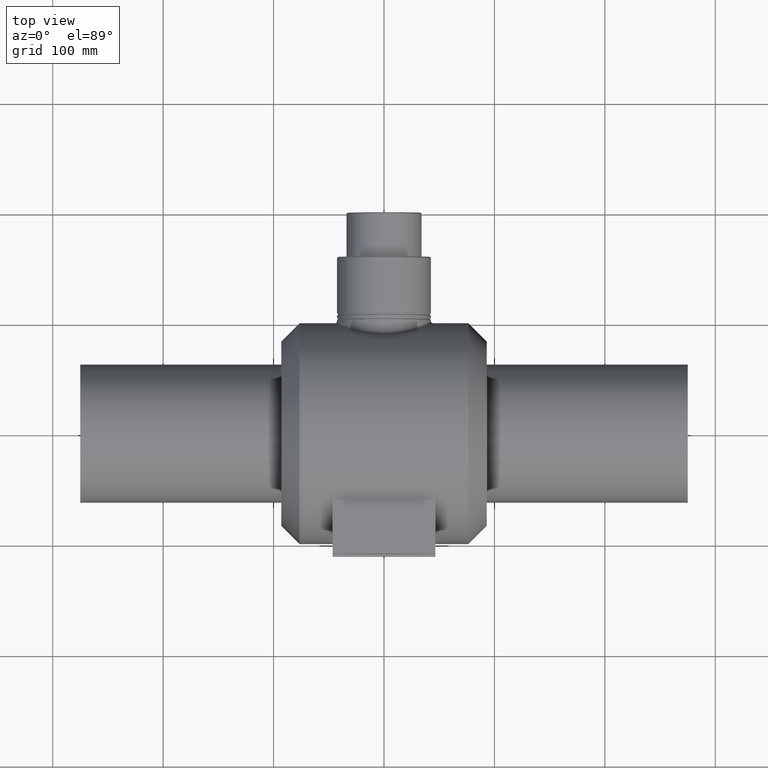
[diagram: clean part render]
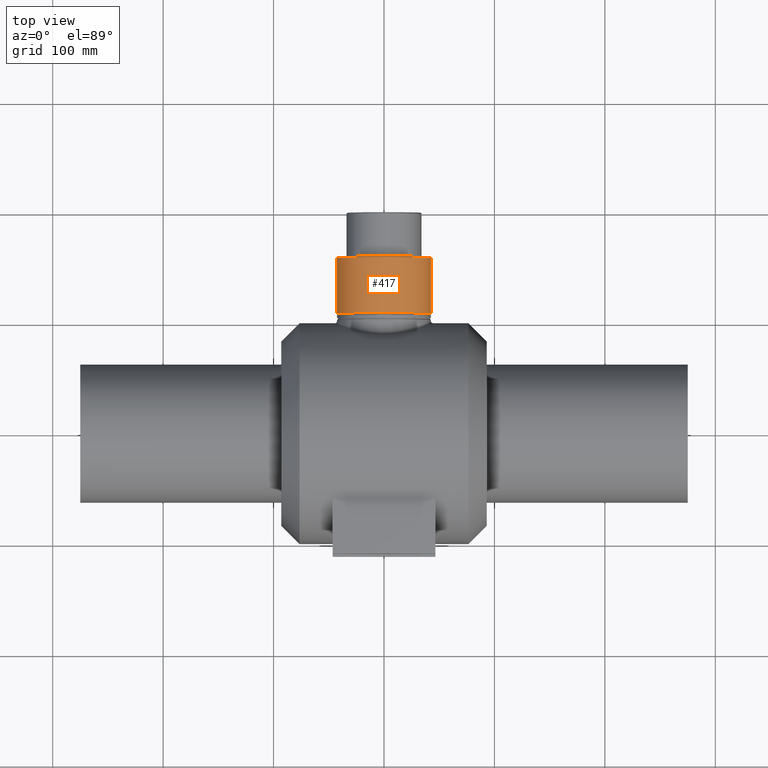
[diagram: same view with one face highlighted and labeled with its STEP entity id]
A machine part, top view. The second image highlights one B-rep face of the part: STEP entity #417.
In plain terms, the highlighted cylindrical surface (bore or boss wall) has radius 42.5 mm, axis along (0, 1, 0).
Its self-contained STEP definition (entity closure, byte-faithful):
#84=FACE_BOUND('',#155,.T.);
#105=CYLINDRICAL_SURFACE('',#461,42.5);
#116=FACE_OUTER_BOUND('',#154,.T.);
#154=EDGE_LOOP('',(#335));
#155=EDGE_LOOP('',(#336));
#211=CIRCLE('',#459,42.5);
#213=CIRCLE('',#462,42.5);
#242=VERTEX_POINT('',#848);
#244=VERTEX_POINT('',#853);
#282=EDGE_CURVE('',#242,#242,#211,.T.);
#284=EDGE_CURVE('',#244,#244,#213,.T.);
#335=ORIENTED_EDGE('',*,*,#284,.T.);
#336=ORIENTED_EDGE('',*,*,#282,.F.);
#417=ADVANCED_FACE('',(#116,#84),#105,.T.);
#459=AXIS2_PLACEMENT_3D('',#849,#534,#535);
#461=AXIS2_PLACEMENT_3D('',#852,#538,#539);
#462=AXIS2_PLACEMENT_3D('',#854,#540,#541);
#534=DIRECTION('center_axis',(0.,1.,0.));
#535=DIRECTION('ref_axis',(1.,0.,0.));
#538=DIRECTION('center_axis',(0.,1.,0.));
#539=DIRECTION('ref_axis',(-1.,0.,0.));
#540=DIRECTION('center_axis',(0.,1.,0.));
#541=DIRECTION('ref_axis',(1.,0.,0.));
#848=CARTESIAN_POINT('',(-42.5,159.15,5.20474889637625E-15));
#849=CARTESIAN_POINT('Origin',(0.,159.15,0.));
#852=CARTESIAN_POINT('Origin',(0.,134.425,0.));
#853=CARTESIAN_POINT('',(-42.5,108.85,0.));
#854=CARTESIAN_POINT('Origin',(0.,108.85,0.));